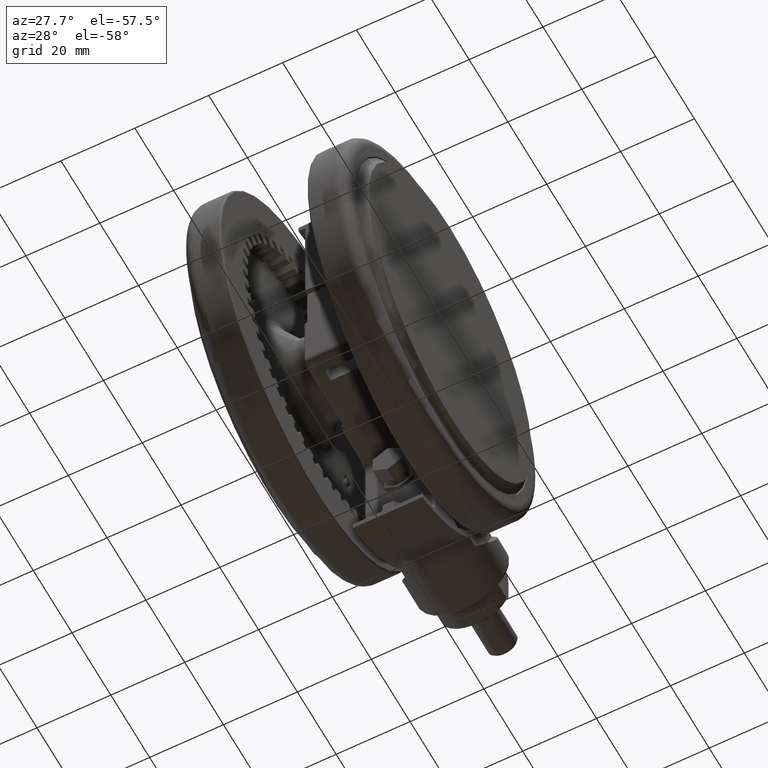
[diagram: clean part render]
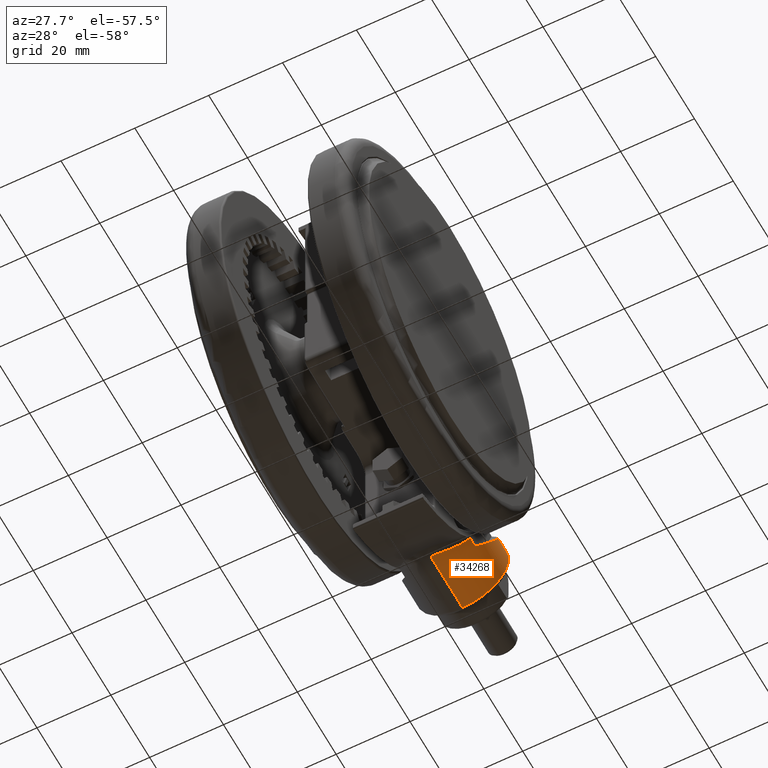
[diagram: same view with one face highlighted and labeled with its STEP entity id]
A machine part, auxiliary view. The second image highlights one B-rep face of the part: STEP entity #34268.
In plain terms, the highlighted cylindrical surface (partial cylindrical patch) has radius 12.5 mm, axis along (0, -1, -0).
Its self-contained STEP definition (entity closure, byte-faithful):
#355 = ORIENTED_EDGE ( 'NONE', *, *, #25326, .T. ) ;
#1073 = CARTESIAN_POINT ( 'NONE',  ( -27.18659902853048000, -44.33448537886626200, -12.19203685021742500 ) ) ;
#2086 = EDGE_LOOP ( 'NONE', ( #44764, #4595, #42956, #16788, #12865, #355, #39848, #41209 ) ) ;
#2323 = EDGE_CURVE ( 'NONE', #24004, #46172, #8170, .T. ) ;
#2430 = CARTESIAN_POINT ( 'NONE',  ( -11.49999999999999800, -52.31403237119456400, -24.18277110155803900 ) ) ;
#2444 = CARTESIAN_POINT ( 'NONE',  ( -34.21907164093681100, -37.63051104464103200, -17.10103321055018100 ) ) ;
#2595 = CARTESIAN_POINT ( 'NONE',  ( -11.87415706030120600, -51.89020425943805000, -21.26359312755701900 ) ) ;
#2617 = CARTESIAN_POINT ( 'NONE',  ( -35.45137718920580700, -36.95633427270735200, -19.28839850063547300 ) ) ;
#2754 = CARTESIAN_POINT ( 'NONE',  ( -13.91721893550443700, -49.63917646210447300, -16.89873617722571100 ) ) ;
#2772 = CARTESIAN_POINT ( 'NONE',  ( -36.24000156349666200, -36.33735371592871400, -21.76378023264612000 ) ) ;
#3709 = DIRECTION ( 'NONE',  ( 2.164600363292672200E-016, -1.000000000000000000, 6.688773330916236600E-017 ) ) ;
#3915 = DIRECTION ( 'NONE',  ( -2.164600363292672200E-016, 1.000000000000000000, -6.688773330916236600E-017 ) ) ;
#4595 = ORIENTED_EDGE ( 'NONE', *, *, #41279, .T. ) ;
#4692 = CARTESIAN_POINT ( 'NONE',  ( -15.87596159536404400, -49.51720754871510600, -14.79999999999995100 ) ) ;
#4858 = CARTESIAN_POINT ( 'NONE',  ( -29.18113622483876000, -43.04733609713623100, -12.90271475560033000 ) ) ;
#5912 = CARTESIAN_POINT ( 'NONE',  ( -33.51028970828846800, -37.93220448718817300, -16.12263061677519700 ) ) ;
#5973 = LINE ( 'NONE', #28831, #26096 ) ;
#6178 = DIRECTION ( 'NONE',  ( -2.164600363292672200E-016, 1.000000000000000000, -6.688773330916236600E-017 ) ) ;
#6221 = CARTESIAN_POINT ( 'NONE',  ( -11.49999999749908100, -52.31395312412913500, -24.29999999998277400 ) ) ;
#6234 = CARTESIAN_POINT ( 'NONE',  ( -34.41477385414428600, -37.54181864110322700, -17.38658844337106400 ) ) ;
#6396 = CARTESIAN_POINT ( 'NONE',  ( -12.03270311118254600, -51.71462763008992900, -20.67673076583624700 ) ) ;
#6404 = DIRECTION ( 'NONE',  ( -2.164600363292672200E-016, 1.000000000000000000, -6.688773330916236600E-017 ) ) ;
#6407 = CARTESIAN_POINT ( 'NONE',  ( -35.47091343021338600, -36.94286382234802300, -19.33327133735178900 ) ) ;
#6551 = CARTESIAN_POINT ( 'NONE',  ( -14.20315738760782100, -49.31826586636828600, -16.53649438928169200 ) ) ;
#6567 = CARTESIAN_POINT ( 'NONE',  ( -36.25404827327366100, -36.32462915271486300, -21.83227477245025800 ) ) ;
#6821 = VERTEX_POINT ( 'NONE', #35500 ) ;
#6943 = LINE ( 'NONE', #33968, #45871 ) ;
#8170 = B_SPLINE_CURVE_WITH_KNOTS ( 'NONE', 3,
 ( #40081, #9851, #5912, #17497, #43849, #21263, #47649, #25053, #2444, #28894, #6234, #32652, #10012, #36466, #13849, #40236, #17668, #44014, #21430, #47811, #25218, #2617, #29046, #6407, #32814, #10178, #36628, #14019, #40394, #17835, #44183, #21595, #47979, #25389, #2772, #29212, #6567, #32987, #10330, #36798, #14181, #40566, #18002, #44343 ),
 .UNSPECIFIED., .F., .F.,
 ( 4, 2, 2, 1, 1, 1, 1, 2, 2, 2, 1, 1, 1, 1, 2, 2, 1, 1, 1, 2, 2, 2, 2, 1, 1, 1, 1, 1, 2, 4 ),
 ( 0.0000000000000000000, 0.1249255703119594000, 0.1259015513300216200, 0.1268775323480838300, 0.1288294943842075400, 0.1327334184564546700, 0.1405412666009485700, 0.1561569628899360800, 0.1873883554679119100, 0.1893403175040351800, 0.1912922795401584300, 0.1951962036124047000, 0.2030040517568972300, 0.2186197480458824400, 0.2498511406238523000, 0.2518031026599752400, 0.2537550646960982600, 0.2576589887683443100, 0.2654668369128361200, 0.2810825332018202500, 0.3123139257797873900, 0.3747767109357216800, 0.3757526919537829700, 0.3767286729718442600, 0.3786806350079668900, 0.3825845590802121600, 0.3903924072247025900, 0.4060081035136832700, 0.4372394960916447000, 0.4997022812475671000 ),
 .UNSPECIFIED. ) ;
#8452 = CARTESIAN_POINT ( 'NONE',  ( -18.50498052677985300, -48.59743070215943600, -13.06586106458218700 ) ) ;
#8619 = CARTESIAN_POINT ( 'NONE',  ( -31.00672856486629000, -41.75080129080008400, -13.92485431581231700 ) ) ;
#8846 = AXIS2_PLACEMENT_3D ( 'NONE', #31751, #9092, #35555 ) ;
#9092 = DIRECTION ( 'NONE',  ( -2.164600363292672200E-016, 1.000000000000000000, -6.688773330916236600E-017 ) ) ;
#9604 = DIRECTION ( 'NONE',  ( -1.000000000000000000, 0.0000000000000000000, 0.0000000000000000000 ) ) ;
#9851 = CARTESIAN_POINT ( 'NONE',  ( -32.83125385933055200, -38.14565107042782400, -15.40478373834636500 ) ) ;
#9991 = CARTESIAN_POINT ( 'NONE',  ( -11.50160649131325900, -52.31216857828459900, -24.06816994875664400 ) ) ;
#10012 = CARTESIAN_POINT ( 'NONE',  ( -34.72578075728979700, -37.38940461894167600, -17.87562727408301900 ) ) ;
#10161 = CARTESIAN_POINT ( 'NONE',  ( -12.37451303787214700, -51.33722765525884300, -19.68300155141816200 ) ) ;
#10178 = CARTESIAN_POINT ( 'NONE',  ( -35.53244071496540400, -36.90006616351854500, -19.47717980003576000 ) ) ;
#10317 = CARTESIAN_POINT ( 'NONE',  ( -14.24059847110484400, -49.27620445412056700, -16.48942404525891800 ) ) ;
#10330 = CARTESIAN_POINT ( 'NONE',  ( -36.30919287769805900, -36.27436485532080500, -22.11932611986386400 ) ) ;
#10580 = VECTOR ( 'NONE', #6404, 1000.000000000000000 ) ;
#12282 = CARTESIAN_POINT ( 'NONE',  ( -19.57704638410181600, -48.17566345032432900, -12.60232710388630500 ) ) ;
#12451 = CARTESIAN_POINT ( 'NONE',  ( -32.12403840463594700, -40.89066099462655800, -14.79999999999995100 ) ) ;
#12865 = ORIENTED_EDGE ( 'NONE', *, *, #16951, .T. ) ;
#13770 = LINE ( 'NONE', #44958, #32651 ) ;
#13829 = CARTESIAN_POINT ( 'NONE',  ( -11.52277463258130800, -52.28729937744774500, -23.48435005713312800 ) ) ;
#13849 = CARTESIAN_POINT ( 'NONE',  ( -34.86605375876006700, -37.31307439966754900, -18.12107899146424800 ) ) ;
#13999 = CARTESIAN_POINT ( 'NONE',  ( -12.79025391987330100, -50.87949791767891100, -18.76871594240802600 ) ) ;
#14019 = CARTESIAN_POINT ( 'NONE',  ( -35.67933347742983600, -36.79462365433645500, -19.84388870939200100 ) ) ;
#14165 = CARTESIAN_POINT ( 'NONE',  ( -14.40103564270672500, -49.09549660091035900, -16.29210051227531900 ) ) ;
#14181 = CARTESIAN_POINT ( 'NONE',  ( -36.41440691823745400, -36.17639652804264500, -22.82392555823444600 ) ) ;
#15856 = FACE_OUTER_BOUND ( 'NONE', #2086, .T. ) ;
#16125 = CARTESIAN_POINT ( 'NONE',  ( -21.40233950824108800, -47.39834970335152800, -12.05018964479318600 ) ) ;
#16635 = CARTESIAN_POINT ( 'NONE',  ( -32.12403840463594700, -38.31509045503450700, -14.79999999999995300 ) ) ;
#16788 = ORIENTED_EDGE ( 'NONE', *, *, #37419, .T. ) ;
#16951 = EDGE_CURVE ( 'NONE', #41728, #32101, #40588, .T. ) ;
#17497 = CARTESIAN_POINT ( 'NONE',  ( -34.12118266670740500, -37.67273934764465100, -16.96435235112907600 ) ) ;
#17654 = CARTESIAN_POINT ( 'NONE',  ( -11.63317884103796700, -52.15973736451479000, -22.41859875629932800 ) ) ;
#17668 = CARTESIAN_POINT ( 'NONE',  ( -34.89991779094594900, -37.29449198007012700, -18.18092196628458300 ) ) ;
#17816 = CARTESIAN_POINT ( 'NONE',  ( -12.86599494790271200, -50.79623484116525800, -18.61781978714705200 ) ) ;
#17835 = CARTESIAN_POINT ( 'NONE',  ( -35.87378657353621500, -36.64745104569661300, -20.38723262964901700 ) ) ;
#17980 = CARTESIAN_POINT ( 'NONE',  ( -14.82547161867747600, -48.61404563628273200, -15.80768953879781500 ) ) ;
#18002 = CARTESIAN_POINT ( 'NONE',  ( -36.49999988733622300, -36.09349687896403200, -23.88754698582878100 ) ) ;
#18318 = EDGE_CURVE ( 'NONE', #36477, #35218, #45676, .T. ) ;
#19727 = CARTESIAN_POINT ( 'NONE',  ( -16.49027540315066500, -49.32024930121444600, -14.27466221400451800 ) ) ;
#19899 = CARTESIAN_POINT ( 'NONE',  ( -23.62308709128518200, -46.33171650806773600, -11.78449639545280200 ) ) ;
#21263 = CARTESIAN_POINT ( 'NONE',  ( -34.13120689593764500, -37.66846706646716600, -16.97820478455195200 ) ) ;
#21409 = CARTESIAN_POINT ( 'NONE',  ( -11.83381134435850300, -51.93493560021425300, -21.43036578274967900 ) ) ;
#21430 = CARTESIAN_POINT ( 'NONE',  ( -35.03906758269813800, -37.21624811567432500, -18.43398178494854600 ) ) ;
#21584 = CARTESIAN_POINT ( 'NONE',  ( -13.13204433572634000, -50.50422516873212000, -18.11720177862509500 ) ) ;
#21595 = CARTESIAN_POINT ( 'NONE',  ( -36.16130169531840000, -36.40849875480955000, -21.38801587333927400 ) ) ;
#21755 = CARTESIAN_POINT ( 'NONE',  ( -15.54995348196903700, -47.78636332586857100, -15.07878972983615100 ) ) ;
#23683 = CARTESIAN_POINT ( 'NONE',  ( -25.79077555276478900, -45.16075350272525700, -11.90845821034589500 ) ) ;
#24004 = VERTEX_POINT ( 'NONE', #16635 ) ;
#24113 = AXIS2_PLACEMENT_3D ( 'NONE', #24662, #43615, #9604 ) ;
#24662 = CARTESIAN_POINT ( 'NONE',  ( -23.99999999999999300, -53.50000000000000700, -24.29999999999994700 ) ) ;
#25053 = CARTESIAN_POINT ( 'NONE',  ( -34.16764174743406800, -37.65284456410802200, -17.02881292186038900 ) ) ;
#25202 = CARTESIAN_POINT ( 'NONE',  ( -11.85361184071263300, -51.91298111664696100, -21.34769804895757900 ) ) ;
#25218 = CARTESIAN_POINT ( 'NONE',  ( -35.35741100250524500, -37.02084243652043200, -19.07432975577344400 ) ) ;
#25326 = EDGE_CURVE ( 'NONE', #32101, #24004, #39550, .T. ) ;
#25367 = CARTESIAN_POINT ( 'NONE',  ( -13.66132967603428100, -49.92226014938675900, -17.25999720446913700 ) ) ;
#25389 = CARTESIAN_POINT ( 'NONE',  ( -36.23715382502900400, -36.33993012263067600, -21.75007544321501400 ) ) ;
#26096 = VECTOR ( 'NONE', #6178, 1000.000000000000000 ) ;
#26857 = CARTESIAN_POINT ( 'NONE',  ( -36.49999999999999300, -52.50000000000000700, -24.29999999999994700 ) ) ;
#27209 = CARTESIAN_POINT ( 'NONE',  ( -15.87596159536404400, -47.41259161259300500, -14.79999999999995100 ) ) ;
#27325 = EDGE_CURVE ( 'NONE', #31957, #6821, #38188, .T. ) ;
#27495 = CARTESIAN_POINT ( 'NONE',  ( -27.87314279641979200, -43.90557785843155600, -12.39449503796297100 ) ) ;
#28831 = CARTESIAN_POINT ( 'NONE',  ( -11.49999999999999300, -53.50000000000000700, -24.29999999999994700 ) ) ;
#28894 = CARTESIAN_POINT ( 'NONE',  ( -34.32331525845513900, -37.58423699296214700, -17.25027979270060300 ) ) ;
#29032 = CARTESIAN_POINT ( 'NONE',  ( -11.92419819683564000, -51.83475274087167200, -21.06759803929276500 ) ) ;
#29038 = CARTESIAN_POINT ( 'NONE',  ( -32.12403840463594700, -53.50000000000000700, -14.79999999999995100 ) ) ;
#29046 = CARTESIAN_POINT ( 'NONE',  ( -35.45834896827553700, -36.95153514973358700, -19.30435314968724500 ) ) ;
#29196 = CARTESIAN_POINT ( 'NONE',  ( -14.19658101706507500, -49.32564976504331600, -16.54479768513962800 ) ) ;
#29212 = CARTESIAN_POINT ( 'NONE',  ( -36.24425457442741600, -36.33350434493667100, -21.78433459507728300 ) ) ;
#30711 = CARTESIAN_POINT ( 'NONE',  ( -11.49999999749908100, -52.31395312412913500, -24.29999999998277400 ) ) ;
#30940 = CARTESIAN_POINT ( 'NONE',  ( -36.50000001806535700, -36.09362725572350400, -24.29999658554314500 ) ) ;
#31132 = CARTESIAN_POINT ( 'NONE',  ( -18.15790647829204100, -48.72803138035261800, -13.24230878170940600 ) ) ;
#31281 = CARTESIAN_POINT ( 'NONE',  ( -29.80720139342221800, -42.61545928194530600, -13.20881858745125600 ) ) ;
#31751 = CARTESIAN_POINT ( 'NONE',  ( -23.99999999999999300, -52.50000000000000700, -24.29999999999994700 ) ) ;
#31957 = VERTEX_POINT ( 'NONE', #26857 ) ;
#32101 = VERTEX_POINT ( 'NONE', #46754 ) ;
#32651 = VECTOR ( 'NONE', #3709, 1000.000000000000000 ) ;
#32652 = CARTESIAN_POINT ( 'NONE',  ( -34.59973128371528600, -37.45330876539701800, -17.67076234773432100 ) ) ;
#32800 = CARTESIAN_POINT ( 'NONE',  ( -12.14018767312704700, -51.59585398030736800, -20.34405421971487400 ) ) ;
#32814 = CARTESIAN_POINT ( 'NONE',  ( -35.48963411192150400, -36.92991092592433900, -19.37658311765648400 ) ) ;
#32970 = CARTESIAN_POINT ( 'NONE',  ( -14.21810933346962500, -49.30147257499638900, -16.51766362024335400 ) ) ;
#32987 = CARTESIAN_POINT ( 'NONE',  ( -36.27311717479182100, -36.30730546197649700, -21.92807313305850100 ) ) ;
#33418 = EDGE_CURVE ( 'NONE', #31957, #46172, #6943, .T. ) ;
#33968 = CARTESIAN_POINT ( 'NONE',  ( -36.49999999999999300, -53.50000000000000700, -24.29999999999994700 ) ) ;
#34268 = ADVANCED_FACE ( 'NONE', ( #15856 ), #34728, .T. ) ;
#34728 = CYLINDRICAL_SURFACE ( 'NONE', #24113, 12.49999999999999600 ) ;
#34927 = CARTESIAN_POINT ( 'NONE',  ( -19.21366458462778600, -48.32162733577079200, -12.74612143378282000 ) ) ;
#35086 = CARTESIAN_POINT ( 'NONE',  ( -31.58257035236977100, -41.31604273419216600, -14.33695713142165200 ) ) ;
#35218 = VERTEX_POINT ( 'NONE', #27209 ) ;
#35500 = CARTESIAN_POINT ( 'NONE',  ( -11.49999999999999100, -52.50000000000000700, -24.29999999999994700 ) ) ;
#35555 = DIRECTION ( 'NONE',  ( -1.000000000000000000, 0.0000000000000000000, 0.0000000000000000000 ) ) ;
#36321 = CARTESIAN_POINT ( 'NONE',  ( -15.87596159536404400, -49.51720754871510600, -14.79999999999995100 ) ) ;
#36447 = CARTESIAN_POINT ( 'NONE',  ( -11.50810273875164600, -52.30455322052525000, -23.83514702855822200 ) ) ;
#36466 = CARTESIAN_POINT ( 'NONE',  ( -34.86014351232513800, -37.31630280301596500, -18.11069175473656400 ) ) ;
#36477 = VERTEX_POINT ( 'NONE', #30711 ) ;
#36609 = CARTESIAN_POINT ( 'NONE',  ( -12.55656313693024200, -51.13670473791536600, -19.24802759421066200 ) ) ;
#36628 = CARTESIAN_POINT ( 'NONE',  ( -35.61461062774503000, -36.84189128903796700, -19.67647250788782600 ) ) ;
#36780 = CARTESIAN_POINT ( 'NONE',  ( -14.29350256255330900, -49.21669821868471200, -16.42357982157118800 ) ) ;
#36798 = CARTESIAN_POINT ( 'NONE',  ( -36.37319197473188100, -36.21531074129342900, -22.50033337249992700 ) ) ;
#37419 = EDGE_CURVE ( 'NONE', #35218, #41728, #13770, .T. ) ;
#38188 = CIRCLE ( 'NONE', #8846, 12.49999999999999600 ) ;
#38739 = CARTESIAN_POINT ( 'NONE',  ( -20.66888513448110800, -47.72230467312302000, -12.22747113301630900 ) ) ;
#39550 = LINE ( 'NONE', #29038, #10580 ) ;
#39848 = ORIENTED_EDGE ( 'NONE', *, *, #2323, .T. ) ;
#40081 = CARTESIAN_POINT ( 'NONE',  ( -32.12403840463594700, -38.31509045503450700, -14.79999999999995300 ) ) ;
#40218 = CARTESIAN_POINT ( 'NONE',  ( -11.55256962503603900, -52.25255311505475200, -23.13018757280832500 ) ) ;
#40236 = CARTESIAN_POINT ( 'NONE',  ( -34.87962305963709000, -37.30564295848562800, -18.14500274588189700 ) ) ;
#40375 = CARTESIAN_POINT ( 'NONE',  ( -12.81470440440005900, -50.85260799995162300, -18.71946213071553100 ) ) ;
#40394 = CARTESIAN_POINT ( 'NONE',  ( -35.80168147988528200, -36.70355044283289900, -20.17382168435242200 ) ) ;
#40546 = CARTESIAN_POINT ( 'NONE',  ( -14.62305712172531500, -48.84433677775125900, -16.03011364348464000 ) ) ;
#40566 = CARTESIAN_POINT ( 'NONE',  ( -36.47957591456979300, -36.11417289990463100, -23.46611478646570200 ) ) ;
#40588 = B_SPLINE_CURVE_WITH_KNOTS ( 'NONE', 3,
 ( #4692, #19727, #42308, #31132, #8452, #34927, #12282, #38739, #16125, #42476, #19899, #46250, #23683, #1073, #27495, #4858, #31281, #8619, #35086, #12451 ),
 .UNSPECIFIED., .F., .F.,
 ( 4, 2, 2, 2, 2, 2, 2, 2, 2, 4 ),
 ( 0.0000000000000000000, 0.002458179595956212800, 0.003687269393934323900, 0.004916359191912434200, 0.007374538787868656500, 0.009832718383824877100, 0.01229089797978109900, 0.01474907757573732200, 0.01720725717169354100, 0.01966543676764976500 ),
 .UNSPECIFIED. ) ;
#41209 = ORIENTED_EDGE ( 'NONE', *, *, #33418, .F. ) ;
#41279 = EDGE_CURVE ( 'NONE', #6821, #36477, #5973, .T. ) ;
#41728 = VERTEX_POINT ( 'NONE', #36321 ) ;
#42308 = CARTESIAN_POINT ( 'NONE',  ( -17.13934532274532100, -49.09954461523868500, -13.82184250064776500 ) ) ;
#42476 = CARTESIAN_POINT ( 'NONE',  ( -22.87662996931522500, -46.70464101429591600, -11.82828265461662700 ) ) ;
#42956 = ORIENTED_EDGE ( 'NONE', *, *, #18318, .T. ) ;
#43615 = DIRECTION ( 'NONE',  ( -2.164600363292672200E-016, 1.000000000000000000, -6.688773330916236600E-017 ) ) ;
#43849 = CARTESIAN_POINT ( 'NONE',  ( -34.12394766112302600, -37.67156191372762900, -16.96817061709058900 ) ) ;
#43998 = CARTESIAN_POINT ( 'NONE',  ( -11.71496968621212500, -52.06676256314960200, -21.93982029699283800 ) ) ;
#44014 = CARTESIAN_POINT ( 'NONE',  ( -34.94685685017782400, -37.26844631393579000, -18.26496723256317600 ) ) ;
#44166 = CARTESIAN_POINT ( 'NONE',  ( -12.94386997800127400, -50.71069343732430200, -18.46608445041886200 ) ) ;
#44183 = CARTESIAN_POINT ( 'NONE',  ( -36.06573623713463700, -36.49300108588585100, -21.00542363734206600 ) ) ;
#44327 = CARTESIAN_POINT ( 'NONE',  ( -15.24687865362074400, -48.13344829595043000, -15.36702184867200500 ) ) ;
#44343 = CARTESIAN_POINT ( 'NONE',  ( -36.50000001806535700, -36.09362725572350400, -24.29999658554314500 ) ) ;
#44764 = ORIENTED_EDGE ( 'NONE', *, *, #27325, .T. ) ;
#44958 = CARTESIAN_POINT ( 'NONE',  ( -15.87596159536404400, -53.50000000000000700, -14.79999999999995100 ) ) ;
#45676 = B_SPLINE_CURVE_WITH_KNOTS ( 'NONE', 3,
 ( #6221, #2430, #9991, #36447, #13829, #40218, #17654, #43998, #21409, #47793, #25202, #2595, #29032, #6396, #32800, #10161, #36609, #13999, #40375, #17816, #44166, #21584, #47966, #25367, #2754, #29196, #6551, #32970, #10317, #36780, #14165, #40546, #17980, #44327, #21755, #48127 ),
 .UNSPECIFIED., .F., .F.,
 ( 4, 2, 1, 2, 2, 2, 1, 1, 1, 2, 2, 2, 1, 1, 2, 2, 2, 1, 1, 1, 1, 2, 4 ),
 ( 0.4996176467738759300, 0.5152545953121929800, 0.5308915438505100700, 0.5621654409271438200, 0.6247132350804111000, 0.6286224722149903500, 0.6325317093495694800, 0.6403501836187275300, 0.6559871321570434100, 0.6872610292336751600, 0.7498088233869387700, 0.7576272976560970400, 0.7654457719252553100, 0.7810827204635718600, 0.8123566175402052700, 0.8749044116934725500, 0.8768590302607622800, 0.8788136488280520200, 0.8827228859626310400, 0.8905413602317889800, 0.9061783087701049700, 0.9374522058467366100, 1.000000000000000000 ),
 .UNSPECIFIED. ) ;
#45871 = VECTOR ( 'NONE', #3915, 1000.000000000000000 ) ;
#46172 = VERTEX_POINT ( 'NONE', #30940 ) ;
#46250 = CARTESIAN_POINT ( 'NONE',  ( -25.07838997984038100, -45.56042750376079200, -11.82534694400002300 ) ) ;
#46754 = CARTESIAN_POINT ( 'NONE',  ( -32.12403840463594700, -40.89066099462655800, -14.79999999999995100 ) ) ;
#47649 = CARTESIAN_POINT ( 'NONE',  ( -34.14210928022161100, -37.66381044724838700, -16.99329829170409000 ) ) ;
#47793 = CARTESIAN_POINT ( 'NONE',  ( -11.84011506767321400, -51.92794611493748400, -21.40379031166991900 ) ) ;
#47811 = CARTESIAN_POINT ( 'NONE',  ( -35.21677137471778700, -37.11142425518021100, -18.77561857904351000 ) ) ;
#47966 = CARTESIAN_POINT ( 'NONE',  ( -13.30404741046894700, -50.31547237914458000, -17.82724679447087400 ) ) ;
#47979 = CARTESIAN_POINT ( 'NONE',  ( -36.23549645470843900, -36.34142888843267400, -21.74213810169099400 ) ) ;
#48127 = CARTESIAN_POINT ( 'NONE',  ( -15.87596159536404400, -47.41259161259300500, -14.79999999999995100 ) ) ;